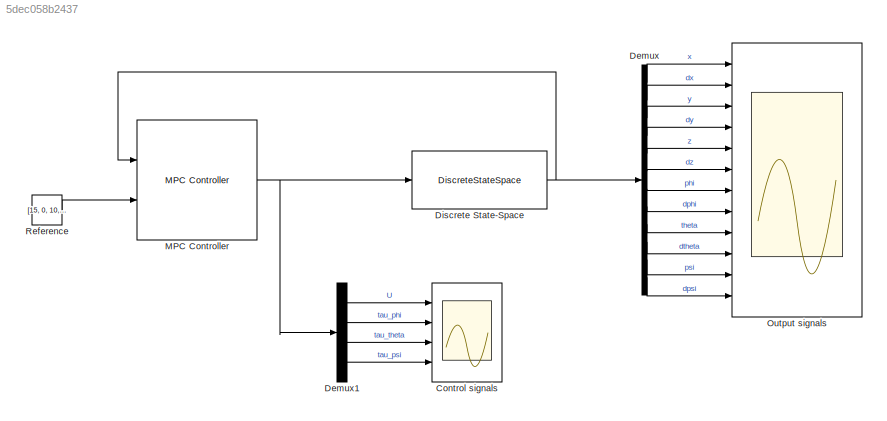
MODEL slx_5dec058b2437
KIND model
CONFIG AbsTol = auto
CONFIG FixedStep = auto
CONFIG MaxStep = auto
CONFIG MinStep = auto
CONFIG RelTol = 1e-3
CONFIG SampleTimeConstraint = Unconstrained
CONFIG Solver = VariableStepAuto
CONFIG SolverMode = Auto
CONFIG SolverName = VariableStepAuto
CONFIG StartTime = 0.0
CONFIG StopTime = 10.0
BLOCK [Scope] Control signals 
  NumInputPorts = 4
  Ports = [4]
  ScopeSpecificationString = Simulink.scopes.TimeScopeBlockCfg('CurrentConfiguration', extmgr.ConfigurationSet(extmgr.Configuration('Core','General UI',true,'FigureColor',[1 1 1]),extmgr.Configuration('Core','Source UI',true),extmgr.Configuration('Sources','WiredSimulink',true,'DataLoggingVariableName','ScopeData1'),extmgr.Configuration('Visuals','Time Domain',true,'SerializedDisplays',{struct('MinYLimReal','-34.53194','MaxYL...<+2172ch>
BLOCK [Demux] Demux
  DisplayOption = bar
  Outputs = 12
  Ports = [1, 12]
BLOCK [Demux] Demux1
  DisplayOption = bar
  Ports = [1, 4]
BLOCK [DiscreteStateSpace] Discrete State-Space
  A = A
  B = B
  C = C
  D = D
  SampleTime = Ts
  X0 = [x1_0,x2_0,x3_0,x4_0,x5_0,x6_0,x7_0,x8_0,x9_0,x10_0,x11_0,x12_0]
BLOCK [Reference] MPC Controller  REF=mpclib/MPC Controller  (lib defined in mdl_ae329e0e0455)
  Ports = [2, 1]
  SCDEnableBlockLinearizationSpecification = on
  SourceBlock = mpclib/MPC Controller
  SourceType = MPC
BLOCK [Scope] Output signals 
  NumInputPorts = 12
  Ports = [12]
  ScopeSpecificationString = Simulink.scopes.TimeScopeBlockCfg('CurrentConfiguration', extmgr.ConfigurationSet(extmgr.Configuration('Core','General UI',true,'FigureColor',[1 1 1]),extmgr.Configuration('Core','Source UI',true),extmgr.Configuration('Sources','WiredSimulink',true,'DataLoggingVariableName','ScopeData1'),extmgr.Configuration('Visuals','Time Domain',true,'SerializedDisplays',{struct('MinYLimReal','-2.49852','MaxYLi...<+11382ch>
BLOCK [Constant] Reference 
  SampleTime = Ts
  Value = [15, 0, 10, 0, 5, 0, 0, 0, 0, 0, 0, 0]
LINE Demux1:1 -> Control signals :1
LINE Demux1:2 -> Control signals :2
LINE Demux1:3 -> Control signals :3
LINE Demux1:4 -> Control signals :4
LINE Demux:1 -> Output signals :1
LINE Demux:10 -> Output signals :10
LINE Demux:11 -> Output signals :11
LINE Demux:12 -> Output signals :12
LINE Demux:2 -> Output signals :2
LINE Demux:3 -> Output signals :3
LINE Demux:4 -> Output signals :4
LINE Demux:5 -> Output signals :5
LINE Demux:6 -> Output signals :6
LINE Demux:7 -> Output signals :7
LINE Demux:8 -> Output signals :8
LINE Demux:9 -> Output signals :9
NET Discrete State-Space:1 -> Demux:1, MPC Controller:1
NET MPC Controller:1 -> Demux1:1, Discrete State-Space:1
LINE Reference :1 -> MPC Controller:2
note: NET lines group one-source signal fan-out (src -> all destinations, sorted); 1:1 wires keep LINE
